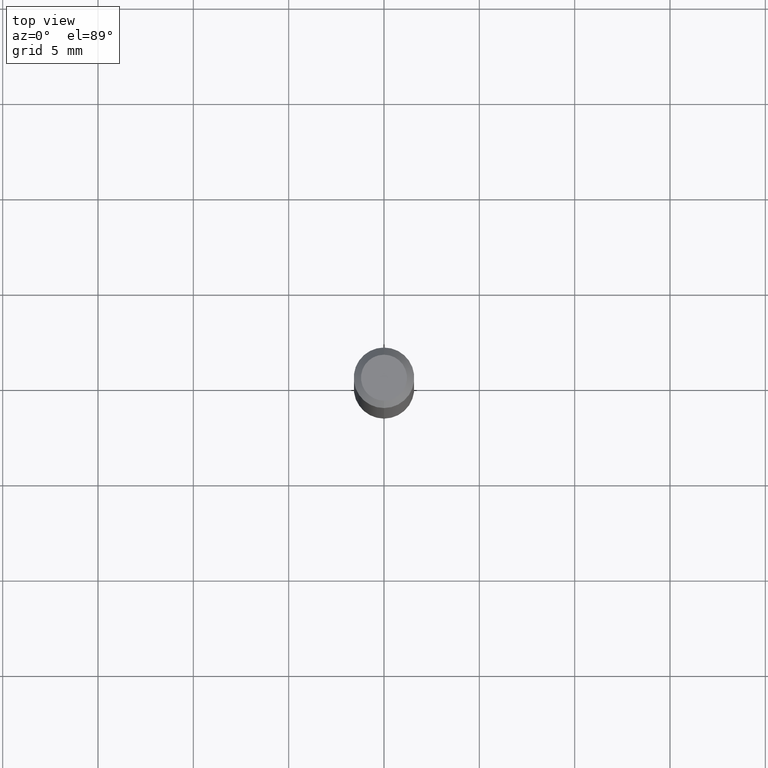
[diagram: clean part render]
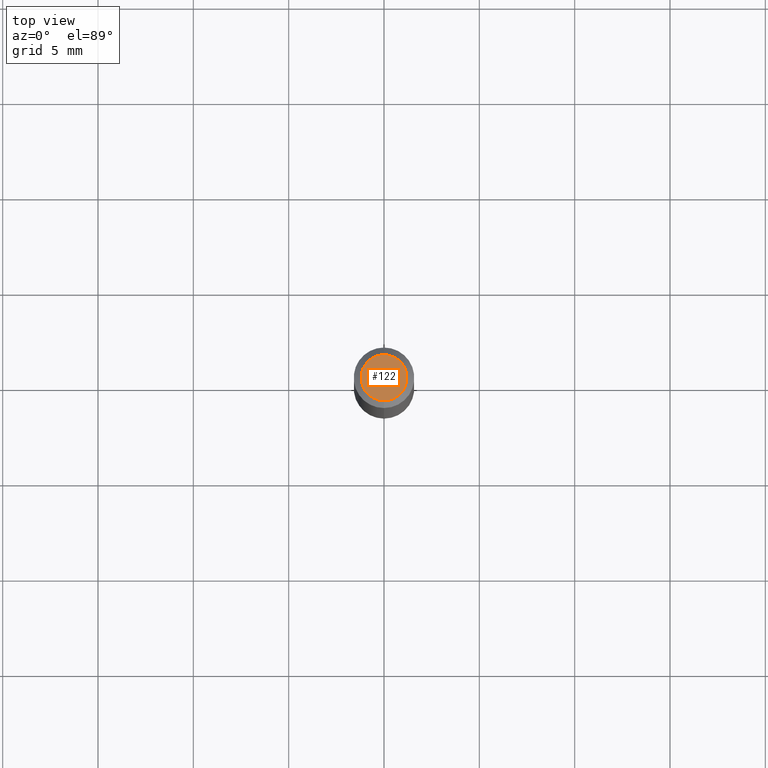
[diagram: same view with one face highlighted and labeled with its STEP entity id]
A machine part, top view. The second image highlights one B-rep face of the part: STEP entity #122.
In plain terms, the highlighted planar face has unit normal (0, -0, -1).
Its self-contained STEP definition (entity closure, byte-faithful):
#12 = CARTESIAN_POINT ( 'NONE',  ( -6.680636725634241101E-45, 9.538268826667372095E-31, 2.731855841564421065E-16 ) ) ;
#45 = DIRECTION ( 'NONE',  ( -2.445457269007472935E-29, 3.491497860738215272E-15, 1.000000000000000000 ) ) ;
#80 = CARTESIAN_POINT ( 'NONE',  ( -6.680636725634241101E-45, 9.538268826667372095E-31, 2.731855841564421065E-16 ) ) ;
#114 = DIRECTION ( 'NONE',  ( 2.445457269007472655E-29, -3.491497860738215272E-15, -1.000000000000000000 ) ) ;
#119 = CARTESIAN_POINT ( 'NONE',  ( 3.316907271900976589E-16, 0.04750000000000000749, -2.925335630684416481E-17 ) ) ;
#122 = ADVANCED_FACE ( 'NONE', ( #249 ), #153, .F. ) ;
#153 = PLANE ( 'NONE',  #218 ) ;
#208 = DIRECTION ( 'NONE',  ( -6.982962677686265133E-15, -1.000000000000000000, 3.491497860738214483E-15 ) ) ;
#218 = AXIS2_PLACEMENT_3D ( 'NONE', #119, #114, #479 ) ;
#229 = AXIS2_PLACEMENT_3D ( 'NONE', #80, #380, #358 ) ;
#249 = FACE_OUTER_BOUND ( 'NONE', #337, .T. ) ;
#328 = CARTESIAN_POINT ( 'NONE',  ( -3.773273898774340269E-16, -0.04750000000000000749, 4.390317325415073368E-16 ) ) ;
#337 = EDGE_LOOP ( 'NONE', ( #378, #429 ) ) ;
#358 = DIRECTION ( 'NONE',  ( -6.982962677686265133E-15, -1.000000000000000000, 3.491497860738214483E-15 ) ) ;
#378 = ORIENTED_EDGE ( 'NONE', *, *, #438, .T. ) ;
#380 = DIRECTION ( 'NONE',  ( -2.445457269007472935E-29, 3.491497860738215272E-15, 1.000000000000000000 ) ) ;
#394 = CIRCLE ( 'NONE', #448, 0.04750000000000000749 ) ;
#410 = CIRCLE ( 'NONE', #229, 0.04750000000000000749 ) ;
#429 = ORIENTED_EDGE ( 'NONE', *, *, #484, .T. ) ;
#438 = EDGE_CURVE ( 'NONE', #467, #500, #410, .T. ) ;
#448 = AXIS2_PLACEMENT_3D ( 'NONE', #12, #45, #208 ) ;
#467 = VERTEX_POINT ( 'NONE', #486 ) ;
#479 = DIRECTION ( 'NONE',  ( 6.982962677686265922E-15, 1.000000000000000000, -3.491497860738215272E-15 ) ) ;
#484 = EDGE_CURVE ( 'NONE', #500, #467, #394, .T. ) ;
#486 = CARTESIAN_POINT ( 'NONE',  ( 3.840629472727447874E-16, 0.04750000000000000749, 1.073394357713768638E-16 ) ) ;
#500 = VERTEX_POINT ( 'NONE', #328 ) ;